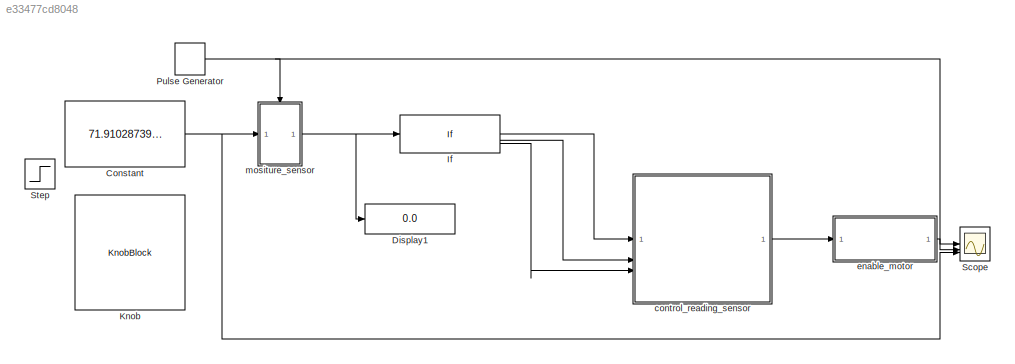
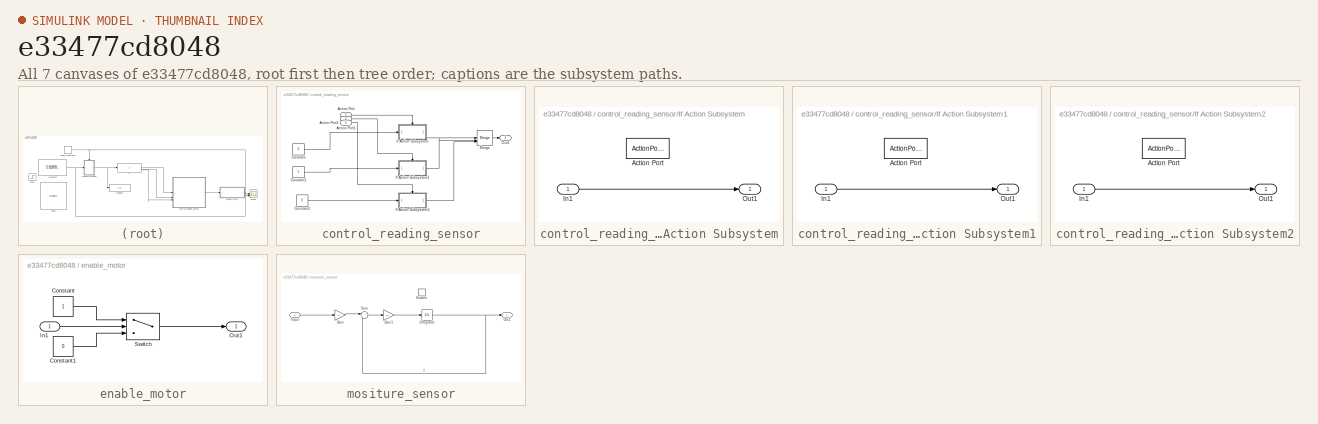
[diagram: thumbnail index - all 7 canvases of the model, root first then tree order]
MODEL slx_e33477cd8048
KIND model
CONFIG AbsTol = auto
CONFIG EnableMultiTasking = off
CONFIG FixedStep = 0.001
CONFIG MaxStep = auto
CONFIG MinStep = auto
CONFIG RelTol = 1e-3
CONFIG SampleTimeConstraint = Unconstrained
CONFIG SolverName = FixedStepAuto
CONFIG StartTime = 0.0
CONFIG StopTime = inf
BLOCK [Constant] Constant
  Value = 71.91028739525414
BLOCK [Display] Display1
  Decimation = 1
BLOCK [If] If
  ElseIfExpressions = u1<50
  IfExpression = u1 > 200
BLOCK [KnobBlock] Knob
  ScaleMax = 200
BLOCK [DiscretePulseGenerator] Pulse Generator
  Period = 10
  PulseType = Time based
  PulseWidth = 50
BLOCK [Scope] Scope
  Floating = off
  NumInputPorts = 3
  ScopeSpecificationString = Simulink.scopes.TimeScopeBlockCfg('CurrentConfiguration', extmgr.ConfigurationSet(extmgr.Configuration('Core','General UI',true),extmgr.Configuration('Core','Source UI',true),extmgr.Configuration('Sources','WiredSimulink',true),extmgr.Configuration('Visuals','Time Domain',true,'SerializedDisplays',{struct('MinYLimReal','-0.125','MaxYLimReal','1.125','YLabelReal','','MinYLimMag','0.00000','MaxYLimM...<+2716ch>
BLOCK [Step] Step
  SampleTime = 0
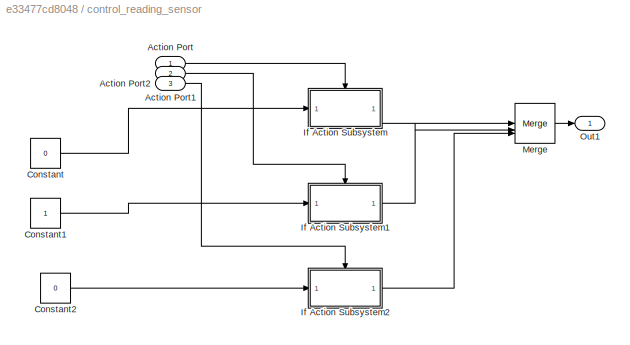
BLOCK [SubSystem] control_reading_sensor
BLOCK [Inport] control_reading_sensor/Action Port
BLOCK [Inport] control_reading_sensor/Action Port1
  Port = 2
BLOCK [Inport] control_reading_sensor/Action Port2
  Port = 3
BLOCK [Constant] control_reading_sensor/Constant
  Value = 0
BLOCK [Constant] control_reading_sensor/Constant1
BLOCK [Constant] control_reading_sensor/Constant2
  Value = 0
BLOCK [SubSystem] control_reading_sensor/If Action Subsystem
  TreatAsAtomicUnit = on
BLOCK [ActionPort] control_reading_sensor/If Action Subsystem/Action Port
  ActionPortLabel = if(u1 > 200)
BLOCK [Inport] control_reading_sensor/If Action Subsystem/In1
BLOCK [Outport] control_reading_sensor/If Action Subsystem/Out1
BLOCK [SubSystem] control_reading_sensor/If Action Subsystem1
  TreatAsAtomicUnit = on
BLOCK [ActionPort] control_reading_sensor/If Action Subsystem1/Action Port
  ActionPortLabel = elseif(u1<50)
BLOCK [Inport] control_reading_sensor/If Action Subsystem1/In1
BLOCK [Outport] control_reading_sensor/If Action Subsystem1/Out1
BLOCK [SubSystem] control_reading_sensor/If Action Subsystem2
  TreatAsAtomicUnit = on
BLOCK [ActionPort] control_reading_sensor/If Action Subsystem2/Action Port
  ActionPortLabel = else
BLOCK [Inport] control_reading_sensor/If Action Subsystem2/In1
BLOCK [Outport] control_reading_sensor/If Action Subsystem2/Out1
BLOCK [Merge] control_reading_sensor/Merge
  Inputs = 3
BLOCK [Outport] control_reading_sensor/Out1
BLOCK [SubSystem] enable_motor
BLOCK [Constant] enable_motor/Constant
BLOCK [Constant] enable_motor/Constant1
  Value = 0
BLOCK [Inport] enable_motor/In1
BLOCK [Outport] enable_motor/Out1
BLOCK [Switch] enable_motor/Switch
  Criteria = u2 ~= 0
  InputSameDT = off
  SaturateOnIntegerOverflow = off
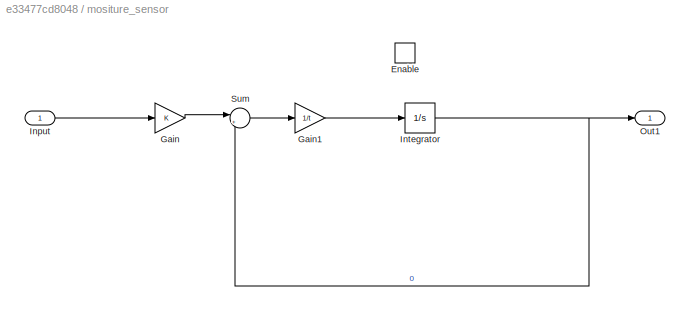
BLOCK [SubSystem] mositure_sensor
BLOCK [EnablePort] mositure_sensor/Enable
BLOCK [Gain] mositure_sensor/Gain
  Gain = K
BLOCK [Gain] mositure_sensor/Gain1
  Gain = 1/t
BLOCK [Inport] mositure_sensor/Input
BLOCK [Integrator] mositure_sensor/Integrator
BLOCK [Outport] mositure_sensor/Out1
BLOCK [Sum] mositure_sensor/Sum
  Inputs = |+-
NET Constant:1 -> Scope:3, mositure_sensor:1
LINE If:1 -> control_reading_sensor:1
LINE If:2 -> control_reading_sensor:2
LINE If:3 -> control_reading_sensor:3
NET Pulse Generator:1 -> Scope:1, mositure_sensor:enable
LINE control_reading_sensor/Action Port1:1 -> control_reading_sensor/If Action Subsystem1:ifaction
LINE control_reading_sensor/Action Port2:1 -> control_reading_sensor/If Action Subsystem2:ifaction
LINE control_reading_sensor/Action Port:1 -> control_reading_sensor/If Action Subsystem:ifaction
LINE control_reading_sensor/Constant1:1 -> control_reading_sensor/If Action Subsystem1:1
LINE control_reading_sensor/Constant2:1 -> control_reading_sensor/If Action Subsystem2:1
LINE control_reading_sensor/Constant:1 -> control_reading_sensor/If Action Subsystem:1
LINE control_reading_sensor/If Action Subsystem/In1:1 -> control_reading_sensor/If Action Subsystem/Out1:1
LINE control_reading_sensor/If Action Subsystem1/In1:1 -> control_reading_sensor/If Action Subsystem1/Out1:1
LINE control_reading_sensor/If Action Subsystem1:1 -> control_reading_sensor/Merge:2
LINE control_reading_sensor/If Action Subsystem2/In1:1 -> control_reading_sensor/If Action Subsystem2/Out1:1
LINE control_reading_sensor/If Action Subsystem2:1 -> control_reading_sensor/Merge:3
LINE control_reading_sensor/If Action Subsystem:1 -> control_reading_sensor/Merge:1
LINE control_reading_sensor/Merge:1 -> control_reading_sensor/Out1:1
LINE control_reading_sensor:1 -> enable_motor:1
LINE enable_motor/Constant1:1 -> enable_motor/Switch:3
LINE enable_motor/Constant:1 -> enable_motor/Switch:1
LINE enable_motor/In1:1 -> enable_motor/Switch:2
LINE enable_motor/Switch:1 -> enable_motor/Out1:1
LINE enable_motor:1 -> Scope:2
LINE mositure_sensor/Gain1:1 -> mositure_sensor/Integrator:1
LINE mositure_sensor/Gain:1 -> mositure_sensor/Sum:1
LINE mositure_sensor/Input:1 -> mositure_sensor/Gain:1
NET mositure_sensor/Integrator:1 -> mositure_sensor/Out1:1, mositure_sensor/Sum:2
LINE mositure_sensor/Sum:1 -> mositure_sensor/Gain1:1
NET mositure_sensor:1 -> Display1:1, If:1
note: NET lines group one-source signal fan-out (src -> all destinations, sorted); 1:1 wires keep LINE
